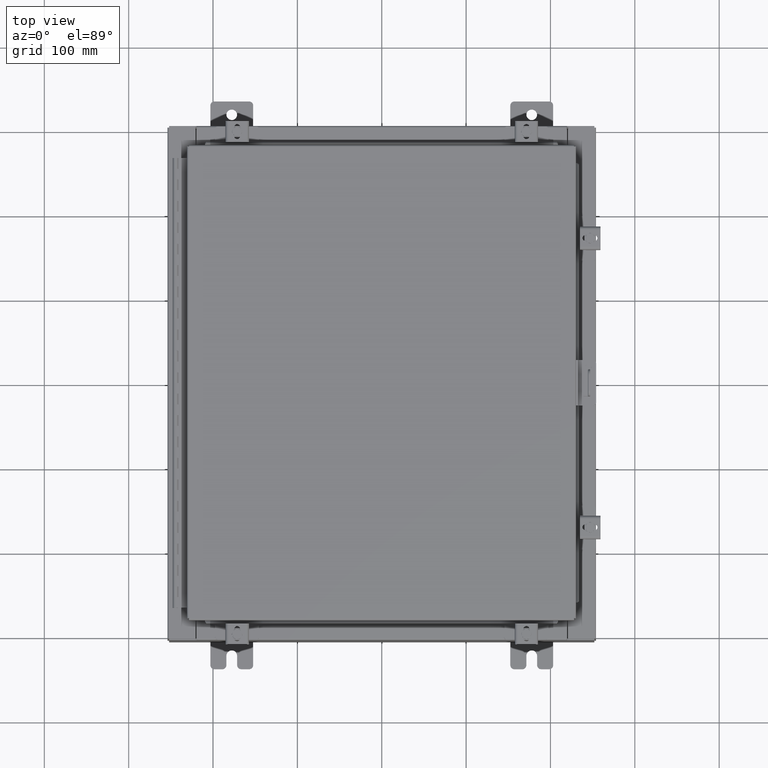
[diagram: clean part render]
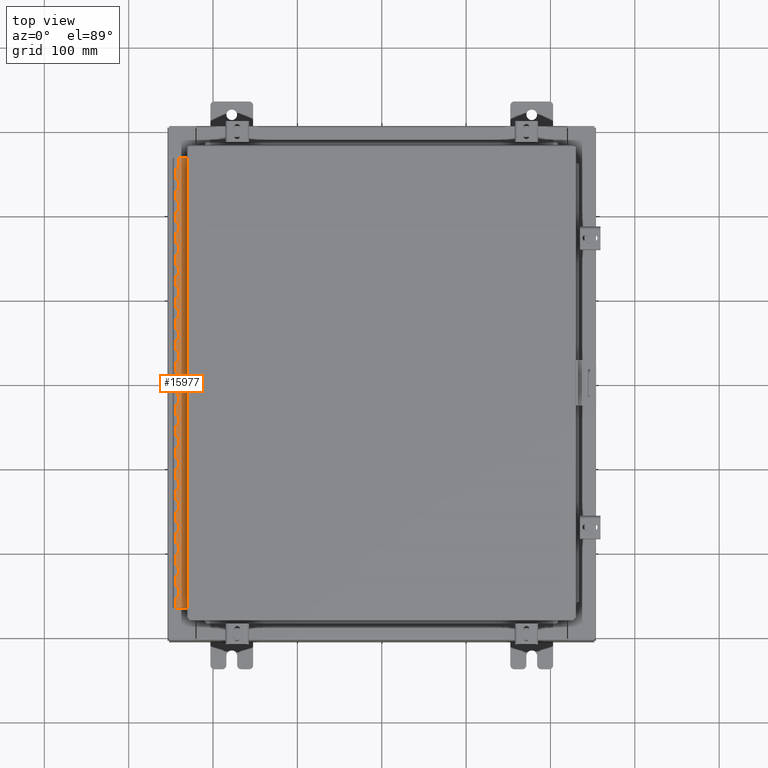
[diagram: same view with one face highlighted and labeled with its STEP entity id]
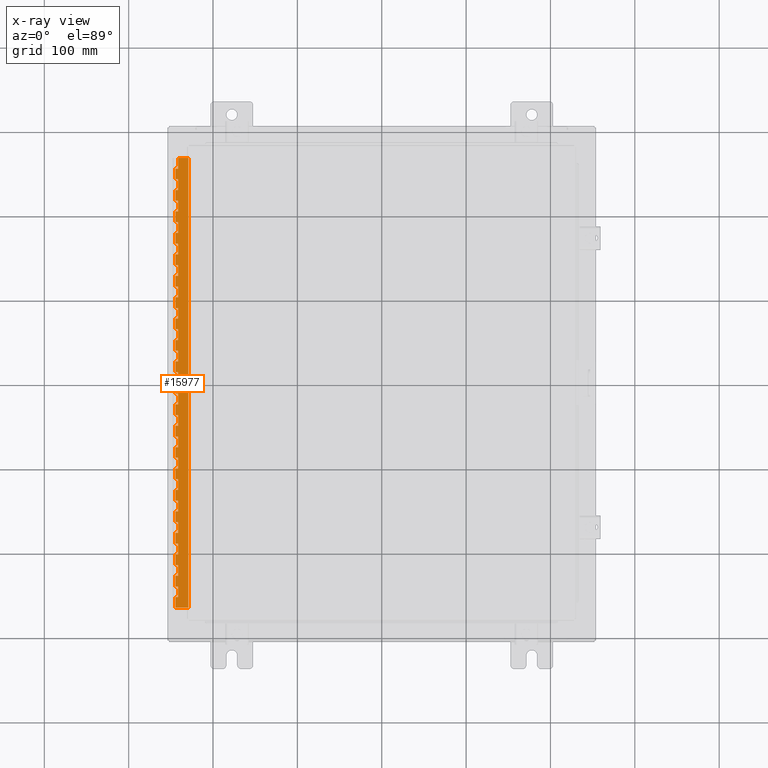
[diagram: x-ray of the same camera — body ghosted, the highlighted face saturated]
A machine part, top view. The second image highlights one B-rep face of the part: STEP entity #15977.
The next image is the same camera in x-ray: the body ghosted, the highlighted face saturated — about 0% of this face is hidden behind the body in this view.
In plain terms, the highlighted planar face has unit normal (-0, -0, 1).
Its self-contained STEP definition (entity closure, byte-faithful):
#59 = DIRECTION ( 'NONE',  ( 3.389037039080705800E-015, 1.000000000000000000, -1.234979445149240800E-029 ) ) ;
#108 = DIRECTION ( 'NONE',  ( -3.389037039080705800E-015, -1.000000000000000000, 1.234979445149240800E-029 ) ) ;
#128 = VECTOR ( 'NONE', #30440, 39.37007874015748100 ) ;
#171 = EDGE_CURVE ( 'NONE', #28133, #19284, #7158, .T. ) ;
#248 = CARTESIAN_POINT ( 'NONE',  ( -0.6869999999999976100, 0.8005000000000066500, -13.49999999999998600 ) ) ;
#260 = CARTESIAN_POINT ( 'NONE',  ( -0.6869999999999987200, 0.6755000000000029900, -7.499999999999995600 ) ) ;
#267 = EDGE_CURVE ( 'NONE', #24902, #18627, #3964, .T. ) ;
#282 = ORIENTED_EDGE ( 'NONE', *, *, #22754, .T. ) ;
#360 = VERTEX_POINT ( 'NONE', #20197 ) ;
#508 = LINE ( 'NONE', #16293, #6456 ) ;
#532 = CARTESIAN_POINT ( 'NONE',  ( -0.6869999999999965000, 0.8005000000000001000, -3.999999999999996900 ) ) ;
#549 = VECTOR ( 'NONE', #26905, 39.37007874015748100 ) ;
#576 = DIRECTION ( 'NONE',  ( -2.888710027306194400E-028, -1.407608235632711600E-029, 1.000000000000000000 ) ) ;
#586 = ORIENTED_EDGE ( 'NONE', *, *, #6159, .F. ) ;
#677 = VECTOR ( 'NONE', #17928, 39.37007874015748100 ) ;
#770 = CARTESIAN_POINT ( 'NONE',  ( -0.6869999999999987200, 0.5504999999999999900, -3.499999999999999100 ) ) ;
#871 = CARTESIAN_POINT ( 'NONE',  ( -0.6869999999999976100, 0.6755000000000062100, -21.00000000000000000 ) ) ;
#970 = ORIENTED_EDGE ( 'NONE', *, *, #171, .F. ) ;
#971 = VERTEX_POINT ( 'NONE', #18257 ) ;
#974 = ORIENTED_EDGE ( 'NONE', *, *, #6602, .F. ) ;
#1055 = LINE ( 'NONE', #19682, #13777 ) ;
#1128 = VECTOR ( 'NONE', #29818, 39.37007874015748100 ) ;
#1149 = VECTOR ( 'NONE', #15678, 39.37007874015748100 ) ;
#1310 = LINE ( 'NONE', #14015, #28365 ) ;
#1321 = EDGE_CURVE ( 'NONE', #13288, #22283, #21781, .T. ) ;
#1416 = VERTEX_POINT ( 'NONE', #32527 ) ;
#1427 = CARTESIAN_POINT ( 'NONE',  ( -0.6869999999999965000, 0.6755000000000029900, -11.49999999999998600 ) ) ;
#1451 = CARTESIAN_POINT ( 'NONE',  ( -0.6869999999999976100, 0.8005000000000023200, -2.999999999999993300 ) ) ;
#1452 = VERTEX_POINT ( 'NONE', #27618 ) ;
#1468 = VECTOR ( 'NONE', #1741, 39.37007874015748100 ) ;
#1543 = LINE ( 'NONE', #22156, #14261 ) ;
#1646 = CARTESIAN_POINT ( 'NONE',  ( -0.6869999999999987200, 0.5505000000000066500, -20.50000000000000400 ) ) ;
#1717 = CARTESIAN_POINT ( 'NONE',  ( -0.6869999999999976100, 0.8005000000000034300, -6.499999999999996400 ) ) ;
#1741 = DIRECTION ( 'NONE',  ( 2.888710027306194400E-028, 1.407608235632711600E-029, -1.000000000000000000 ) ) ;
#1757 = CARTESIAN_POINT ( 'NONE',  ( -0.6869999999999965000, -0.6245000000000068300, 0.0000000000000000000 ) ) ;
#1771 = CARTESIAN_POINT ( 'NONE',  ( -0.6869999999999976100, 0.6755000000000062100, -9.999999999999987600 ) ) ;
#1796 = VERTEX_POINT ( 'NONE', #22133 ) ;
#1800 = VERTEX_POINT ( 'NONE', #29819 ) ;
#1982 = EDGE_CURVE ( 'NONE', #360, #23605, #9858, .T. ) ;
#1983 = VECTOR ( 'NONE', #31587, 39.37007874015748100 ) ;
#2177 = CARTESIAN_POINT ( 'NONE',  ( -0.6869999999999987200, 0.5505000000000022100, -10.00000000000000000 ) ) ;
#2344 = VECTOR ( 'NONE', #11026, 39.37007874015748100 ) ;
#2361 = CARTESIAN_POINT ( 'NONE',  ( -0.6869999999999987200, 0.6755000000000029900, -18.99999999999998600 ) ) ;
#2423 = CARTESIAN_POINT ( 'NONE',  ( -0.6869999999999976100, 0.8005000000000023200, -7.499999999999995600 ) ) ;
#2468 = DIRECTION ( 'NONE',  ( 3.389037039080705800E-015, 1.000000000000000000, -1.234979445149240800E-029 ) ) ;
#2474 = CARTESIAN_POINT ( 'NONE',  ( -0.6869999999999976100, 0.6754999999999996600, -4.499999999999998200 ) ) ;
#2478 = CARTESIAN_POINT ( 'NONE',  ( -0.6869999999999976100, 0.5505000000000022100, -17.99999999999999600 ) ) ;
#2489 = VECTOR ( 'NONE', #16832, 39.37007874015748100 ) ;
#2522 = CARTESIAN_POINT ( 'NONE',  ( -0.6869999999999987200, 0.5505000000000066500, -5.499999999999997300 ) ) ;
#2667 = EDGE_CURVE ( 'NONE', #18343, #29575, #25346, .T. ) ;
#2679 = VERTEX_POINT ( 'NONE', #260 ) ;
#2810 = VECTOR ( 'NONE', #29061, 39.37007874015748100 ) ;
#2823 = VERTEX_POINT ( 'NONE', #8449 ) ;
#2838 = LINE ( 'NONE', #14298, #29095 ) ;
#2862 = CARTESIAN_POINT ( 'NONE',  ( -0.6869999999999976100, 0.6755000000000062100, -21.00000000000000000 ) ) ;
#2869 = CARTESIAN_POINT ( 'NONE',  ( -0.6869999999999976100, 0.5505000000000066500, -12.49999999999999800 ) ) ;
#2900 = LINE ( 'NONE', #28665, #9657 ) ;
#2933 = EDGE_CURVE ( 'NONE', #23991, #6891, #5443, .T. ) ;
#2962 = LINE ( 'NONE', #24045, #9716 ) ;
#2998 = VECTOR ( 'NONE', #31684, 39.37007874015748100 ) ;
#3075 = VERTEX_POINT ( 'NONE', #12361 ) ;
#3080 = VERTEX_POINT ( 'NONE', #7350 ) ;
#3102 = CARTESIAN_POINT ( 'NONE',  ( -0.6869999999999932800, 0.5505000000000022100, -14.00000000000000000 ) ) ;
#3106 = CARTESIAN_POINT ( 'NONE',  ( -0.6869999999999921700, 0.8005000000000066500, -17.49999999999998600 ) ) ;
#3373 = VERTEX_POINT ( 'NONE', #31231 ) ;
#3407 = CARTESIAN_POINT ( 'NONE',  ( -0.6869999999999976100, 0.8005000000000023200, -18.49999999999998600 ) ) ;
#3416 = EDGE_CURVE ( 'NONE', #1452, #22773, #19711, .T. ) ;
#3457 = CARTESIAN_POINT ( 'NONE',  ( -0.6869999999999976100, 0.6755000000000062100, -21.00000000000000000 ) ) ;
#3551 = CARTESIAN_POINT ( 'NONE',  ( -0.6869999999999987200, 0.5505000000000066500, -16.50000000000000000 ) ) ;
#3602 = DIRECTION ( 'NONE',  ( -2.888710027306194400E-028, -1.407608235632711600E-029, 1.000000000000000000 ) ) ;
#3705 = DIRECTION ( 'NONE',  ( 3.389037039080705800E-015, 1.000000000000000000, -1.234979445149240800E-029 ) ) ;
#3767 = LINE ( 'NONE', #23207, #16513 ) ;
#3777 = VECTOR ( 'NONE', #23903, 39.37007874015748100 ) ;
#3789 = LINE ( 'NONE', #13880, #2998 ) ;
#3927 = DIRECTION ( 'NONE',  ( -3.389037039080705800E-015, -1.000000000000000000, 1.234979445149240800E-029 ) ) ;
#3964 = LINE ( 'NONE', #24992, #23442 ) ;
#3969 = VERTEX_POINT ( 'NONE', #26316 ) ;
#4012 = EDGE_CURVE ( 'NONE', #5154, #20380, #3767, .T. ) ;
#4051 = EDGE_CURVE ( 'NONE', #3080, #12506, #15711, .T. ) ;
#4091 = ORIENTED_EDGE ( 'NONE', *, *, #23774, .F. ) ;
#4120 = VERTEX_POINT ( 'NONE', #770 ) ;
#4200 = ORIENTED_EDGE ( 'NONE', *, *, #15272, .F. ) ;
#4205 = EDGE_CURVE ( 'NONE', #3373, #1800, #26056, .T. ) ;
#4291 = DIRECTION ( 'NONE',  ( -2.888710027306194400E-028, -1.407608235632711600E-029, 1.000000000000000000 ) ) ;
#4333 = EDGE_CURVE ( 'NONE', #22283, #24902, #28032, .T. ) ;
#4342 = VERTEX_POINT ( 'NONE', #29653 ) ;
#4374 = ORIENTED_EDGE ( 'NONE', *, *, #26386, .T. ) ;
#4777 = EDGE_CURVE ( 'NONE', #28614, #24092, #29581, .T. ) ;
#4835 = VECTOR ( 'NONE', #23687, 39.37007874015748100 ) ;
#5004 = CARTESIAN_POINT ( 'NONE',  ( -0.6869999999999976100, 0.6755000000000062100, -9.499999999999998200 ) ) ;
#5038 = EDGE_CURVE ( 'NONE', #14388, #19718, #24800, .T. ) ;
#5089 = ORIENTED_EDGE ( 'NONE', *, *, #19036, .F. ) ;
#5121 = ORIENTED_EDGE ( 'NONE', *, *, #17936, .F. ) ;
#5154 = VERTEX_POINT ( 'NONE', #30293 ) ;
#5249 = VECTOR ( 'NONE', #29860, 39.37007874015748100 ) ;
#5279 = EDGE_CURVE ( 'NONE', #18817, #10953, #16828, .T. ) ;
#5329 = LINE ( 'NONE', #248, #31600 ) ;
#5347 = DIRECTION ( 'NONE',  ( -3.389037039080705800E-015, -1.000000000000000000, 1.234979445149240800E-029 ) ) ;
#5368 = CARTESIAN_POINT ( 'NONE',  ( -0.6869999999999910600, 0.8005000000000023200, -11.49999999999998600 ) ) ;
#5383 = CARTESIAN_POINT ( 'NONE',  ( -0.6869999999999953900, 0.8005000000000023200, -10.49999999999998800 ) ) ;
#5404 = ORIENTED_EDGE ( 'NONE', *, *, #2933, .F. ) ;
#5420 = CARTESIAN_POINT ( 'NONE',  ( -0.6869999999999976100, 0.6755000000000062100, -21.00000000000000000 ) ) ;
#5422 = VECTOR ( 'NONE', #17115, 39.37007874015748100 ) ;
#5443 = LINE ( 'NONE', #32047, #31710 ) ;
#5452 = CARTESIAN_POINT ( 'NONE',  ( -0.6869999999999976100, 0.5505000000000066500, -1.500000000000000900 ) ) ;
#5490 = VECTOR ( 'NONE', #12654, 39.37007874015748100 ) ;
#5612 = EDGE_CURVE ( 'NONE', #18152, #3075, #7269, .T. ) ;
#5628 = VECTOR ( 'NONE', #8579, 39.37007874015748100 ) ;
#5644 = LINE ( 'NONE', #28708, #4835 ) ;
#5681 = DIRECTION ( 'NONE',  ( 2.888710027306194400E-028, 1.407608235632711600E-029, -1.000000000000000000 ) ) ;
#5967 = EDGE_CURVE ( 'NONE', #20967, #13607, #18759, .T. ) ;
#6017 = ORIENTED_EDGE ( 'NONE', *, *, #32922, .F. ) ;
#6061 = VECTOR ( 'NONE', #108, 39.37007874015748100 ) ;
#6095 = VERTEX_POINT ( 'NONE', #7616 ) ;
#6159 = EDGE_CURVE ( 'NONE', #28614, #10464, #11620, .T. ) ;
#6207 = VECTOR ( 'NONE', #28889, 39.37007874015748100 ) ;
#6246 = ORIENTED_EDGE ( 'NONE', *, *, #27738, .T. ) ;
#6257 = VECTOR ( 'NONE', #10116, 39.37007874015748100 ) ;
#6286 = VECTOR ( 'NONE', #19802, 39.37007874015748100 ) ;
#6413 = ORIENTED_EDGE ( 'NONE', *, *, #4333, .F. ) ;
#6424 = VERTEX_POINT ( 'NONE', #14029 ) ;
#6439 = CARTESIAN_POINT ( 'NONE',  ( -0.6870000000000019400, -0.6245000000000002800, -20.99999999999999600 ) ) ;
#6456 = VECTOR ( 'NONE', #3602, 39.37007874015748100 ) ;
#6542 = ORIENTED_EDGE ( 'NONE', *, *, #13249, .T. ) ;
#6553 = CARTESIAN_POINT ( 'NONE',  ( -0.6869999999999921700, 0.6754999999999996600, -0.4999999999999973900 ) ) ;
#6571 = ORIENTED_EDGE ( 'NONE', *, *, #21753, .F. ) ;
#6583 = EDGE_CURVE ( 'NONE', #7200, #18282, #14642, .T. ) ;
#6602 = EDGE_CURVE ( 'NONE', #10138, #29741, #27370, .T. ) ;
#6632 = DIRECTION ( 'NONE',  ( -2.888710027306194400E-028, -1.407608235632711600E-029, 1.000000000000000000 ) ) ;
#6748 = CARTESIAN_POINT ( 'NONE',  ( -0.6869999999999976100, 0.5505000000000022100, -6.499999999999985800 ) ) ;
#6760 = CARTESIAN_POINT ( 'NONE',  ( -0.6870000000000019400, -0.6245000000000002800, -20.99999999999999600 ) ) ;
#6772 = DIRECTION ( 'NONE',  ( 2.888710027306194400E-028, 1.407608235632711600E-029, -1.000000000000000000 ) ) ;
#6891 = VERTEX_POINT ( 'NONE', #29188 ) ;
#6930 = CARTESIAN_POINT ( 'NONE',  ( -0.6869999999999987200, 0.5504999999999999900, -15.50000000000000000 ) ) ;
#7027 = DIRECTION ( 'NONE',  ( -2.888710027306194400E-028, -1.407608235632711600E-029, 1.000000000000000000 ) ) ;
#7057 = LINE ( 'NONE', #27938, #6257 ) ;
#7107 = DIRECTION ( 'NONE',  ( 2.888710027306194400E-028, 1.407608235632711600E-029, -1.000000000000000000 ) ) ;
#7142 = CARTESIAN_POINT ( 'NONE',  ( -0.6869999999999976100, 0.6755000000000062100, -21.00000000000000000 ) ) ;
#7158 = LINE ( 'NONE', #1757, #13124 ) ;
#7181 = ORIENTED_EDGE ( 'NONE', *, *, #9893, .F. ) ;
#7200 = VERTEX_POINT ( 'NONE', #27741 ) ;
#7269 = LINE ( 'NONE', #532, #26759 ) ;
#7295 = EDGE_CURVE ( 'NONE', #11742, #21086, #26926, .T. ) ;
#7328 = ORIENTED_EDGE ( 'NONE', *, *, #27536, .T. ) ;
#7350 = CARTESIAN_POINT ( 'NONE',  ( -0.6869999999999976100, 0.6755000000000062100, -17.49999999999998600 ) ) ;
#7393 = DIRECTION ( 'NONE',  ( 2.888710027306194400E-028, 1.407608235632711600E-029, -1.000000000000000000 ) ) ;
#7438 = VECTOR ( 'NONE', #4291, 39.37007874015748100 ) ;
#7482 = ORIENTED_EDGE ( 'NONE', *, *, #27048, .F. ) ;
#7616 = CARTESIAN_POINT ( 'NONE',  ( -0.6869999999999976100, 0.6754999999999996600, -8.500000000000000000 ) ) ;
#7620 = CARTESIAN_POINT ( 'NONE',  ( -0.6869999999999976100, 0.8005000000000023200, -14.99999999999998600 ) ) ;
#7665 = VECTOR ( 'NONE', #7929, 39.37007874015748100 ) ;
#7787 = VECTOR ( 'NONE', #7979, 39.37007874015748100 ) ;
#7862 = ORIENTED_EDGE ( 'NONE', *, *, #12829, .F. ) ;
#7929 = DIRECTION ( 'NONE',  ( -3.389037039080705800E-015, -1.000000000000000000, 1.234979445149240800E-029 ) ) ;
#7939 = CARTESIAN_POINT ( 'NONE',  ( -0.6869999999999932800, 0.5505000000000022100, -2.500000000000000000 ) ) ;
#7943 = DIRECTION ( 'NONE',  ( -3.389037039080705800E-015, -1.000000000000000000, 1.234979445149240800E-029 ) ) ;
#7952 = CARTESIAN_POINT ( 'NONE',  ( -0.6869999999999976100, 0.6755000000000029900, -3.499999999999999100 ) ) ;
#7970 = EDGE_CURVE ( 'NONE', #18282, #11739, #28085, .T. ) ;
#7979 = DIRECTION ( 'NONE',  ( -2.888710027306194400E-028, -1.407608235632711600E-029, 1.000000000000000000 ) ) ;
#8010 = DIRECTION ( 'NONE',  ( 2.888710027306194400E-028, 1.407608235632711600E-029, -1.000000000000000000 ) ) ;
#8059 = CARTESIAN_POINT ( 'NONE',  ( -0.6869999999999965000, 0.5504999999999999900, -6.999999999999987600 ) ) ;
#8080 = ORIENTED_EDGE ( 'NONE', *, *, #4777, .T. ) ;
#8104 = DIRECTION ( 'NONE',  ( -3.389037039080705800E-015, -1.000000000000000000, 1.234979445149240800E-029 ) ) ;
#8178 = EDGE_CURVE ( 'NONE', #16756, #24092, #3789, .T. ) ;
#8200 = EDGE_CURVE ( 'NONE', #28820, #10916, #29254, .T. ) ;
#8210 = ORIENTED_EDGE ( 'NONE', *, *, #8620, .T. ) ;
#8240 = ORIENTED_EDGE ( 'NONE', *, *, #8765, .F. ) ;
#8270 = DIRECTION ( 'NONE',  ( 2.888710027306194400E-028, 1.407608235632711600E-029, -1.000000000000000000 ) ) ;
#8276 = CARTESIAN_POINT ( 'NONE',  ( -0.6869999999999976100, 0.6755000000000062100, -1.999999999999998400 ) ) ;
#8327 = EDGE_CURVE ( 'NONE', #20380, #17090, #32046, .T. ) ;
#8333 = ORIENTED_EDGE ( 'NONE', *, *, #13798, .F. ) ;
#8420 = VECTOR ( 'NONE', #9662, 39.37007874015748100 ) ;
#8449 = CARTESIAN_POINT ( 'NONE',  ( -0.6869999999999976100, 0.6755000000000029900, -10.99999999999998600 ) ) ;
#8456 = ORIENTED_EDGE ( 'NONE', *, *, #267, .F. ) ;
#8461 = VECTOR ( 'NONE', #23353, 39.37007874015748100 ) ;
#8465 = CARTESIAN_POINT ( 'NONE',  ( -0.6869999999999976100, 0.8005000000000012100, -19.49999999999998600 ) ) ;
#8574 = LINE ( 'NONE', #5420, #7787 ) ;
#8579 = DIRECTION ( 'NONE',  ( -3.389037039080705800E-015, -1.000000000000000000, 1.234979445149240800E-029 ) ) ;
#8620 = EDGE_CURVE ( 'NONE', #7200, #12876, #2962, .T. ) ;
#8640 = EDGE_CURVE ( 'NONE', #14654, #29063, #8920, .T. ) ;
#8653 = CARTESIAN_POINT ( 'NONE',  ( -0.6869999999999976100, 0.6755000000000062100, -21.00000000000000000 ) ) ;
#8734 = CARTESIAN_POINT ( 'NONE',  ( -0.6869999999999987200, 0.5505000000000066500, -17.00000000000000000 ) ) ;
#8765 = EDGE_CURVE ( 'NONE', #12720, #16191, #11724, .T. ) ;
#8793 = VERTEX_POINT ( 'NONE', #23202 ) ;
#8920 = LINE ( 'NONE', #26733, #15703 ) ;
#8936 = VERTEX_POINT ( 'NONE', #22899 ) ;
#8969 = EDGE_CURVE ( 'NONE', #4342, #971, #5329, .T. ) ;
#8999 = DIRECTION ( 'NONE',  ( 3.369016658928380100E-015, 1.000000000000000000, -1.234601197718643600E-029 ) ) ;
#9106 = CARTESIAN_POINT ( 'NONE',  ( -0.6869999999999987200, 0.5505000000000066500, -17.50000000000000000 ) ) ;
#9234 = CARTESIAN_POINT ( 'NONE',  ( -0.6869999999999976100, 0.6755000000000029900, -10.49999999999998800 ) ) ;
#9287 = VECTOR ( 'NONE', #28529, 39.37007874015748100 ) ;
#9327 = VECTOR ( 'NONE', #8270, 39.37007874015748100 ) ;
#9339 = VERTEX_POINT ( 'NONE', #24889 ) ;
#9481 = ORIENTED_EDGE ( 'NONE', *, *, #23880, .F. ) ;
#9538 = VERTEX_POINT ( 'NONE', #23200 ) ;
#9558 = LINE ( 'NONE', #11276, #2810 ) ;
#9657 = VECTOR ( 'NONE', #15983, 39.37007874015748100 ) ;
#9662 = DIRECTION ( 'NONE',  ( -3.389037039080705800E-015, -1.000000000000000000, 1.234979445149240800E-029 ) ) ;
#9716 = VECTOR ( 'NONE', #18915, 39.37007874015748100 ) ;
#9756 = CARTESIAN_POINT ( 'NONE',  ( -0.6869999999999921700, 0.5504999999999999900, -7.999999999999986700 ) ) ;
#9858 = LINE ( 'NONE', #22783, #22590 ) ;
#9893 = EDGE_CURVE ( 'NONE', #18279, #18817, #14404, .T. ) ;
#10116 = DIRECTION ( 'NONE',  ( -2.888710027306194400E-028, -1.407608235632711600E-029, 1.000000000000000000 ) ) ;
#10122 = CARTESIAN_POINT ( 'NONE',  ( -0.6869999999999965000, 0.5505000000000022100, -18.50000000000000000 ) ) ;
#10138 = VERTEX_POINT ( 'NONE', #16467 ) ;
#10372 = EDGE_CURVE ( 'NONE', #1452, #5154, #14380, .T. ) ;
#10387 = VECTOR ( 'NONE', #7393, 39.37007874015748100 ) ;
#10464 = VERTEX_POINT ( 'NONE', #32900 ) ;
#10630 = VERTEX_POINT ( 'NONE', #3102 ) ;
#10740 = DIRECTION ( 'NONE',  ( 3.389037039080705800E-015, 1.000000000000000000, -1.234979445149240800E-029 ) ) ;
#10741 = VECTOR ( 'NONE', #27913, 39.37007874015748100 ) ;
#10753 = ORIENTED_EDGE ( 'NONE', *, *, #10372, .F. ) ;
#10916 = VERTEX_POINT ( 'NONE', #32326 ) ;
#10953 = VERTEX_POINT ( 'NONE', #14635 ) ;
#11026 = DIRECTION ( 'NONE',  ( 3.389037039080705800E-015, 1.000000000000000000, -1.234979445149240800E-029 ) ) ;
#11040 = DIRECTION ( 'NONE',  ( -3.389037039080705800E-015, -1.000000000000000000, 1.234979445149240800E-029 ) ) ;
#11126 = ORIENTED_EDGE ( 'NONE', *, *, #8327, .F. ) ;
#11201 = VECTOR ( 'NONE', #25147, 39.37007874015748100 ) ;
#11243 = DIRECTION ( 'NONE',  ( -2.888710027306194400E-028, -1.407608235632711600E-029, 1.000000000000000000 ) ) ;
#11267 = CARTESIAN_POINT ( 'NONE',  ( -0.6869999999999987200, 0.5505000000000066500, -9.499999999999998200 ) ) ;
#11276 = CARTESIAN_POINT ( 'NONE',  ( -0.6869999999999976100, 0.8005000000000066500, -12.49999999999998600 ) ) ;
#11284 = CARTESIAN_POINT ( 'NONE',  ( -0.6869999999999965000, 0.8005000000000012100, -15.99999999999998800 ) ) ;
#11286 = CARTESIAN_POINT ( 'NONE',  ( -0.6869999999999976100, 0.8005000000000066500, -8.999999999999996400 ) ) ;
#11333 = DIRECTION ( 'NONE',  ( 3.389037039080705800E-015, 1.000000000000000000, -1.234979445149240800E-029 ) ) ;
#11354 = CARTESIAN_POINT ( 'NONE',  ( -0.6869999999999976100, 0.6755000000000062100, -21.00000000000000000 ) ) ;
#11366 = VECTOR ( 'NONE', #11892, 39.37007874015748100 ) ;
#11379 = ORIENTED_EDGE ( 'NONE', *, *, #24463, .F. ) ;
#11391 = VERTEX_POINT ( 'NONE', #11538 ) ;
#11459 = ORIENTED_EDGE ( 'NONE', *, *, #20223, .F. ) ;
#11462 = LINE ( 'NONE', #2423, #5490 ) ;
#11502 = DIRECTION ( 'NONE',  ( 2.888710027306194400E-028, 1.407608235632711600E-029, -1.000000000000000000 ) ) ;
#11538 = CARTESIAN_POINT ( 'NONE',  ( -0.6869999999999998300, 0.07550000000000224600, -21.00000000000000000 ) ) ;
#11602 = LINE ( 'NONE', #23809, #5628 ) ;
#11620 = LINE ( 'NONE', #5383, #24314 ) ;
#11701 = VERTEX_POINT ( 'NONE', #31303 ) ;
#11724 = LINE ( 'NONE', #29711, #31206 ) ;
#11739 = VERTEX_POINT ( 'NONE', #23833 ) ;
#11742 = VERTEX_POINT ( 'NONE', #31413 ) ;
#11763 = ORIENTED_EDGE ( 'NONE', *, *, #13242, .F. ) ;
#11841 = ORIENTED_EDGE ( 'NONE', *, *, #29527, .F. ) ;
#11892 = DIRECTION ( 'NONE',  ( 3.369016658928380100E-015, 1.000000000000000000, -1.234601197718643400E-029 ) ) ;
#11895 = DIRECTION ( 'NONE',  ( 3.389037039080705800E-015, 1.000000000000000000, -1.234979445149240800E-029 ) ) ;
#12029 = CARTESIAN_POINT ( 'NONE',  ( -0.6869999999999976100, 0.8005000000000066500, -1.500000000000000900 ) ) ;
#12099 = ORIENTED_EDGE ( 'NONE', *, *, #20054, .T. ) ;
#12129 = VECTOR ( 'NONE', #18820, 39.37007874015748100 ) ;
#12140 = ORIENTED_EDGE ( 'NONE', *, *, #31733, .F. ) ;
#12348 = EDGE_CURVE ( 'NONE', #29063, #12876, #22617, .T. ) ;
#12353 = CARTESIAN_POINT ( 'NONE',  ( -0.6869999999999987200, 0.5504999999999999900, -11.00000000000000000 ) ) ;
#12361 = CARTESIAN_POINT ( 'NONE',  ( -0.6869999999999976100, 0.6755000000000007700, -3.999999999999996900 ) ) ;
#12415 = LINE ( 'NONE', #23573, #26740 ) ;
#12480 = CARTESIAN_POINT ( 'NONE',  ( -0.6869999999999976100, 0.8005000000000066500, -9.499999999999998200 ) ) ;
#12506 = VERTEX_POINT ( 'NONE', #9106 ) ;
#12518 = VERTEX_POINT ( 'NONE', #26907 ) ;
#12526 = VERTEX_POINT ( 'NONE', #6553 ) ;
#12557 = ORIENTED_EDGE ( 'NONE', *, *, #22993, .T. ) ;
#12654 = DIRECTION ( 'NONE',  ( -3.389037039080705800E-015, -1.000000000000000000, 1.234979445149240800E-029 ) ) ;
#12720 = VERTEX_POINT ( 'NONE', #30248 ) ;
#12754 = ORIENTED_EDGE ( 'NONE', *, *, #15260, .F. ) ;
#12829 = EDGE_CURVE ( 'NONE', #20997, #23991, #28574, .T. ) ;
#12876 = VERTEX_POINT ( 'NONE', #31007 ) ;
#13124 = VECTOR ( 'NONE', #16989, 39.37007874015748100 ) ;
#13242 = EDGE_CURVE ( 'NONE', #30157, #16756, #28521, .T. ) ;
#13249 = EDGE_CURVE ( 'NONE', #23092, #8793, #20936, .T. ) ;
#13288 = VERTEX_POINT ( 'NONE', #32437 ) ;
#13558 = VECTOR ( 'NONE', #29129, 39.37007874015748100 ) ;
#13607 = VERTEX_POINT ( 'NONE', #28515 ) ;
#13641 = LINE ( 'NONE', #2522, #128 ) ;
#13673 = ORIENTED_EDGE ( 'NONE', *, *, #8969, .F. ) ;
#13704 = VECTOR ( 'NONE', #27085, 39.37007874015748100 ) ;
#13723 = ORIENTED_EDGE ( 'NONE', *, *, #32610, .F. ) ;
#13770 = ORIENTED_EDGE ( 'NONE', *, *, #7970, .F. ) ;
#13777 = VECTOR ( 'NONE', #7027, 39.37007874015748100 ) ;
#13785 = VERTEX_POINT ( 'NONE', #21585 ) ;
#13786 = CARTESIAN_POINT ( 'NONE',  ( -0.6869999999999976100, 0.8005000000000066500, -20.50000000000000700 ) ) ;
#13798 = EDGE_CURVE ( 'NONE', #3969, #11742, #19297, .T. ) ;
#13802 = EDGE_CURVE ( 'NONE', #6424, #25898, #32852, .T. ) ;
#13880 = CARTESIAN_POINT ( 'NONE',  ( -0.6869999999999976100, 0.8005000000000055400, -9.999999999999987600 ) ) ;
#14015 = CARTESIAN_POINT ( 'NONE',  ( -0.6869999999999932800, 0.5505000000000066500, -13.50000000000000000 ) ) ;
#14029 = CARTESIAN_POINT ( 'NONE',  ( -0.6869999999999976100, 0.6755000000000062100, -16.49999999999998600 ) ) ;
#14038 = CARTESIAN_POINT ( 'NONE',  ( -0.6869999999999965000, 0.8005000000000066500, -16.49999999999998600 ) ) ;
#14064 = LINE ( 'NONE', #1451, #549 ) ;
#14086 = EDGE_CURVE ( 'NONE', #11701, #1796, #24073, .T. ) ;
#14157 = VECTOR ( 'NONE', #7107, 39.37007874015748100 ) ;
#14199 = ORIENTED_EDGE ( 'NONE', *, *, #25574, .F. ) ;
#14261 = VECTOR ( 'NONE', #24721, 39.37007874015748100 ) ;
#14290 = EDGE_CURVE ( 'NONE', #4342, #6891, #31693, .T. ) ;
#14298 = CARTESIAN_POINT ( 'NONE',  ( -0.6869999999999976100, 0.6755000000000062100, -21.00000000000000000 ) ) ;
#14334 = CARTESIAN_POINT ( 'NONE',  ( -0.6869999999999987200, 0.5505000000000022100, -10.50000000000000000 ) ) ;
#14380 = LINE ( 'NONE', #27455, #8420 ) ;
#14388 = VERTEX_POINT ( 'NONE', #15338 ) ;
#14404 = LINE ( 'NONE', #5368, #7665 ) ;
#14413 = CARTESIAN_POINT ( 'NONE',  ( -0.6869999999999987200, 0.5504999999999999900, -4.499999999999998200 ) ) ;
#14461 = ORIENTED_EDGE ( 'NONE', *, *, #4205, .F. ) ;
#14574 = EDGE_CURVE ( 'NONE', #12526, #19284, #24489, .T. ) ;
#14635 = CARTESIAN_POINT ( 'NONE',  ( -0.6869999999999976100, 0.5504999999999999900, -11.99999999999999800 ) ) ;
#14642 = LINE ( 'NONE', #12029, #1128 ) ;
#14654 = VERTEX_POINT ( 'NONE', #26569 ) ;
#14663 = LINE ( 'NONE', #30924, #1149 ) ;
#14802 = DIRECTION ( 'NONE',  ( -2.888710027306194400E-028, -1.407608235632711600E-029, 1.000000000000000000 ) ) ;
#14862 = FACE_OUTER_BOUND ( 'NONE', #26325, .T. ) ;
#14935 = VECTOR ( 'NONE', #24100, 39.37007874015748100 ) ;
#15062 = DIRECTION ( 'NONE',  ( 2.888710027306194400E-028, 1.407608235632711600E-029, -1.000000000000000000 ) ) ;
#15129 = EDGE_CURVE ( 'NONE', #4120, #18152, #16904, .T. ) ;
#15152 = LINE ( 'NONE', #11354, #13558 ) ;
#15260 = EDGE_CURVE ( 'NONE', #32339, #10916, #32431, .T. ) ;
#15272 = EDGE_CURVE ( 'NONE', #27388, #13607, #18864, .T. ) ;
#15335 = CARTESIAN_POINT ( 'NONE',  ( -0.6869999999999976100, 0.8005000000000023200, -15.49999999999998800 ) ) ;
#15338 = CARTESIAN_POINT ( 'NONE',  ( -0.6869999999999987200, 0.5504999999999999900, -15.50000000000000000 ) ) ;
#15483 = CARTESIAN_POINT ( 'NONE',  ( -0.6869999999999987200, 0.5505000000000066500, -20.50000000000000400 ) ) ;
#15668 = DIRECTION ( 'NONE',  ( 2.888710027306194400E-028, 1.407608235632711600E-029, -1.000000000000000000 ) ) ;
#15678 = DIRECTION ( 'NONE',  ( -3.389037039080705800E-015, -1.000000000000000000, 1.234979445149240800E-029 ) ) ;
#15703 = VECTOR ( 'NONE', #11502, 39.37007874015748100 ) ;
#15711 = LINE ( 'NONE', #3106, #22457 ) ;
#15806 = CARTESIAN_POINT ( 'NONE',  ( -0.6869999999999976100, 0.6755000000000062100, -21.00000000000000000 ) ) ;
#15833 = VECTOR ( 'NONE', #16951, 39.37007874015748100 ) ;
#15891 = DIRECTION ( 'NONE',  ( 3.389037039080705800E-015, 1.000000000000000000, -1.234979445149240800E-029 ) ) ;
#15922 = DIRECTION ( 'NONE',  ( 3.389037039080705800E-015, 1.000000000000000000, -1.234979445149240800E-029 ) ) ;
#15977 = ADVANCED_FACE ( 'NONE', ( #14862 ), #31820, .T. ) ;
#15983 = DIRECTION ( 'NONE',  ( 3.389037039080705800E-015, 1.000000000000000000, -1.234979445149240800E-029 ) ) ;
#15986 = CARTESIAN_POINT ( 'NONE',  ( -0.6869999999999976100, 0.6755000000000062100, -21.00000000000000000 ) ) ;
#16006 = EDGE_CURVE ( 'NONE', #21086, #8793, #14064, .T. ) ;
#16009 = LINE ( 'NONE', #21820, #2489 ) ;
#16083 = DIRECTION ( 'NONE',  ( -3.389037039080705800E-015, -1.000000000000000000, 1.234979445149240800E-029 ) ) ;
#16115 = VECTOR ( 'NONE', #15062, 39.37007874015748100 ) ;
#16191 = VERTEX_POINT ( 'NONE', #9756 ) ;
#16293 = CARTESIAN_POINT ( 'NONE',  ( -0.6869999999999976100, 0.6755000000000062100, -21.00000000000000000 ) ) ;
#16330 = LINE ( 'NONE', #15986, #23074 ) ;
#16382 = EDGE_CURVE ( 'NONE', #10630, #22773, #2900, .T. ) ;
#16407 = ORIENTED_EDGE ( 'NONE', *, *, #15129, .F. ) ;
#16438 = CARTESIAN_POINT ( 'NONE',  ( -0.6869999999999976100, 0.6755000000000062100, -21.00000000000000000 ) ) ;
#16450 = ORIENTED_EDGE ( 'NONE', *, *, #23264, .F. ) ;
#16467 = CARTESIAN_POINT ( 'NONE',  ( -0.6869999999999976100, 0.6755000000000062100, -5.499999999999997300 ) ) ;
#16513 = VECTOR ( 'NONE', #15668, 39.37007874015748100 ) ;
#16655 = CARTESIAN_POINT ( 'NONE',  ( -0.6869999999999976100, 0.5505000000000066500, -1.500000000000000900 ) ) ;
#16756 = VERTEX_POINT ( 'NONE', #2177 ) ;
#16828 = LINE ( 'NONE', #31051, #8461 ) ;
#16832 = DIRECTION ( 'NONE',  ( 2.888710027306194400E-028, 1.407608235632711600E-029, -1.000000000000000000 ) ) ;
#16904 = LINE ( 'NONE', #23495, #9327 ) ;
#16940 = VECTOR ( 'NONE', #18634, 39.37007874015748100 ) ;
#16951 = DIRECTION ( 'NONE',  ( -3.389037039080705800E-015, -1.000000000000000000, 1.234979445149240800E-029 ) ) ;
#16989 = DIRECTION ( 'NONE',  ( 3.369016658928380100E-015, 1.000000000000000000, -1.234601197718643400E-029 ) ) ;
#17090 = VERTEX_POINT ( 'NONE', #29407 ) ;
#17099 = VECTOR ( 'NONE', #5681, 39.37007874015748100 ) ;
#17115 = DIRECTION ( 'NONE',  ( -2.888710027306194400E-028, -1.407608235632711600E-029, 1.000000000000000000 ) ) ;
#17164 = VERTEX_POINT ( 'NONE', #29740 ) ;
#17224 = ORIENTED_EDGE ( 'NONE', *, *, #27345, .F. ) ;
#17304 = EDGE_CURVE ( 'NONE', #25898, #26586, #24722, .T. ) ;
#17327 = VECTOR ( 'NONE', #23625, 39.37007874015748100 ) ;
#17488 = EDGE_CURVE ( 'NONE', #17164, #30870, #25112, .T. ) ;
#17497 = EDGE_CURVE ( 'NONE', #23624, #29341, #11602, .T. ) ;
#17785 = CARTESIAN_POINT ( 'NONE',  ( -0.6869999999999976100, 0.8005000000000001000, -8.500000000000000000 ) ) ;
#17928 = DIRECTION ( 'NONE',  ( 2.888710027306194400E-028, 1.407608235632711600E-029, -1.000000000000000000 ) ) ;
#17936 = EDGE_CURVE ( 'NONE', #6095, #12518, #31057, .T. ) ;
#17978 = LINE ( 'NONE', #20539, #30734 ) ;
#18027 = AXIS2_PLACEMENT_3D ( 'NONE', #6439, #24225, #8999 ) ;
#18087 = DIRECTION ( 'NONE',  ( 2.888710027306194400E-028, 1.407608235632711600E-029, -1.000000000000000000 ) ) ;
#18110 = EDGE_CURVE ( 'NONE', #9538, #1416, #20289, .T. ) ;
#18152 = VERTEX_POINT ( 'NONE', #28893 ) ;
#18257 = CARTESIAN_POINT ( 'NONE',  ( -0.6869999999999932800, 0.5505000000000066500, -13.50000000000000000 ) ) ;
#18279 = VERTEX_POINT ( 'NONE', #1427 ) ;
#18282 = VERTEX_POINT ( 'NONE', #16655 ) ;
#18334 = VECTOR ( 'NONE', #11040, 39.37007874015748100 ) ;
#18343 = VERTEX_POINT ( 'NONE', #1646 ) ;
#18354 = LINE ( 'NONE', #11284, #31912 ) ;
#18414 = EDGE_CURVE ( 'NONE', #12526, #14654, #31832, .T. ) ;
#18508 = VECTOR ( 'NONE', #3927, 39.37007874015748100 ) ;
#18511 = CARTESIAN_POINT ( 'NONE',  ( -0.6869999999999998300, 0.07550000000000224600, -21.00000000000000000 ) ) ;
#18564 = VECTOR ( 'NONE', #30724, 39.37007874015748100 ) ;
#18627 = VERTEX_POINT ( 'NONE', #25649 ) ;
#18634 = DIRECTION ( 'NONE',  ( -2.888710027306194400E-028, -1.407608235632711600E-029, 1.000000000000000000 ) ) ;
#18759 = LINE ( 'NONE', #22172, #5249 ) ;
#18771 = LINE ( 'NONE', #15335, #6061 ) ;
#18817 = VERTEX_POINT ( 'NONE', #31533 ) ;
#18820 = DIRECTION ( 'NONE',  ( 3.389037039080705800E-015, 1.000000000000000000, -1.234979445149240800E-029 ) ) ;
#18851 = ORIENTED_EDGE ( 'NONE', *, *, #18110, .F. ) ;
#18864 = LINE ( 'NONE', #18928, #31629 ) ;
#18903 = ORIENTED_EDGE ( 'NONE', *, *, #19821, .T. ) ;
#18915 = DIRECTION ( 'NONE',  ( -2.888710027306194400E-028, -1.407608235632711600E-029, 1.000000000000000000 ) ) ;
#18928 = CARTESIAN_POINT ( 'NONE',  ( -0.6869999999999976100, 0.8005000000000055400, -17.99999999999998600 ) ) ;
#18930 = VECTOR ( 'NONE', #14802, 39.37007874015748100 ) ;
#19036 = EDGE_CURVE ( 'NONE', #11739, #21151, #1543, .T. ) ;
#19049 = ORIENTED_EDGE ( 'NONE', *, *, #5279, .F. ) ;
#19073 = ORIENTED_EDGE ( 'NONE', *, *, #24071, .F. ) ;
#19255 = ORIENTED_EDGE ( 'NONE', *, *, #21364, .F. ) ;
#19274 = CARTESIAN_POINT ( 'NONE',  ( -0.6869999999999987200, 0.5505000000000066500, -5.499999999999997300 ) ) ;
#19284 = VERTEX_POINT ( 'NONE', #28384 ) ;
#19297 = LINE ( 'NONE', #24153, #32068 ) ;
#19501 = CARTESIAN_POINT ( 'NONE',  ( -0.6869999999999987200, 0.5505000000000066500, -9.499999999999998200 ) ) ;
#19682 = CARTESIAN_POINT ( 'NONE',  ( -0.6869999999999976100, 0.6755000000000062100, -21.00000000000000000 ) ) ;
#19711 = LINE ( 'NONE', #8653, #6207 ) ;
#19718 = VERTEX_POINT ( 'NONE', #25050 ) ;
#19802 = DIRECTION ( 'NONE',  ( -3.389037039080705800E-015, -1.000000000000000000, 1.234979445149240800E-029 ) ) ;
#19821 = EDGE_CURVE ( 'NONE', #29369, #1416, #7057, .T. ) ;
#19827 = ORIENTED_EDGE ( 'NONE', *, *, #4051, .F. ) ;
#19916 = ORIENTED_EDGE ( 'NONE', *, *, #14086, .T. ) ;
#19926 = VECTOR ( 'NONE', #576, 39.37007874015748100 ) ;
#20023 = ORIENTED_EDGE ( 'NONE', *, *, #5612, .F. ) ;
#20054 = EDGE_CURVE ( 'NONE', #2679, #18627, #30823, .T. ) ;
#20057 = CARTESIAN_POINT ( 'NONE',  ( -0.6869999999999976100, 0.8005000000000001000, -11.99999999999998600 ) ) ;
#20099 = CARTESIAN_POINT ( 'NONE',  ( -0.6869999999999987200, 0.5504999999999999900, -14.99999999999999800 ) ) ;
#20137 = CARTESIAN_POINT ( 'NONE',  ( -0.6869999999999921700, 0.8005000000000066500, -5.999999999999999100 ) ) ;
#20197 = CARTESIAN_POINT ( 'NONE',  ( -0.6869999999999965000, 0.5504999999999999900, -19.00000000000000000 ) ) ;
#20223 = EDGE_CURVE ( 'NONE', #10464, #22137, #26824, .T. ) ;
#20289 = LINE ( 'NONE', #31234, #26279 ) ;
#20298 = CARTESIAN_POINT ( 'NONE',  ( -0.6869999999999976100, 0.5505000000000066500, -12.49999999999999800 ) ) ;
#20325 = ORIENTED_EDGE ( 'NONE', *, *, #28951, .F. ) ;
#20327 = CARTESIAN_POINT ( 'NONE',  ( -0.6869999999999976100, 0.5505000000000022100, -6.499999999999985800 ) ) ;
#20380 = VERTEX_POINT ( 'NONE', #20099 ) ;
#20539 = CARTESIAN_POINT ( 'NONE',  ( -0.6869999999999987200, 0.5504999999999999900, -4.499999999999998200 ) ) ;
#20547 = ORIENTED_EDGE ( 'NONE', *, *, #17497, .F. ) ;
#20630 = DIRECTION ( 'NONE',  ( -2.888710027306194400E-028, -1.407608235632711600E-029, 1.000000000000000000 ) ) ;
#20833 = ORIENTED_EDGE ( 'NONE', *, *, #1982, .F. ) ;
#20889 = CARTESIAN_POINT ( 'NONE',  ( -0.6869999999999921700, 0.5504999999999999900, -19.50000000000000000 ) ) ;
#20936 = LINE ( 'NONE', #22061, #7438 ) ;
#20967 = VERTEX_POINT ( 'NONE', #22734 ) ;
#20984 = EDGE_CURVE ( 'NONE', #29741, #31637, #13641, .T. ) ;
#20997 = VERTEX_POINT ( 'NONE', #20298 ) ;
#20998 = ORIENTED_EDGE ( 'NONE', *, *, #3416, .T. ) ;
#21053 = CARTESIAN_POINT ( 'NONE',  ( -0.6869999999999976100, 0.6755000000000062100, -21.00000000000000000 ) ) ;
#21086 = VERTEX_POINT ( 'NONE', #23279 ) ;
#21151 = VERTEX_POINT ( 'NONE', #8276 ) ;
#21219 = ORIENTED_EDGE ( 'NONE', *, *, #5038, .F. ) ;
#21230 = EDGE_CURVE ( 'NONE', #3080, #9339, #508, .T. ) ;
#21290 = VECTOR ( 'NONE', #20630, 39.37007874015748100 ) ;
#21293 = VECTOR ( 'NONE', #8010, 39.37007874015748100 ) ;
#21364 = EDGE_CURVE ( 'NONE', #12518, #32339, #16009, .T. ) ;
#21407 = VERTEX_POINT ( 'NONE', #32295 ) ;
#21439 = CARTESIAN_POINT ( 'NONE',  ( -0.6869999999999921700, 0.5504999999999999900, -19.50000000000000000 ) ) ;
#21585 = CARTESIAN_POINT ( 'NONE',  ( -0.6869999999999976100, 0.6754999999999996600, -15.99999999999998800 ) ) ;
#21714 = ORIENTED_EDGE ( 'NONE', *, *, #16006, .F. ) ;
#21753 = EDGE_CURVE ( 'NONE', #26586, #9339, #12415, .T. ) ;
#21756 = VERTEX_POINT ( 'NONE', #23468 ) ;
#21768 = EDGE_CURVE ( 'NONE', #22137, #2823, #5644, .T. ) ;
#21781 = LINE ( 'NONE', #1717, #15833 ) ;
#21783 = VECTOR ( 'NONE', #18087, 39.37007874015748100 ) ;
#21820 = CARTESIAN_POINT ( 'NONE',  ( -0.6869999999999987200, 0.5504999999999999900, -8.499999999999985800 ) ) ;
#21901 = DIRECTION ( 'NONE',  ( 3.389037039080705800E-015, 1.000000000000000000, -1.234979445149240800E-029 ) ) ;
#21979 = ORIENTED_EDGE ( 'NONE', *, *, #4012, .F. ) ;
#22061 = CARTESIAN_POINT ( 'NONE',  ( -0.6869999999999976100, 0.6755000000000062100, -21.00000000000000000 ) ) ;
#22133 = CARTESIAN_POINT ( 'NONE',  ( -0.6869999999999921700, 0.6755000000000007700, -11.99999999999998600 ) ) ;
#22137 = VERTEX_POINT ( 'NONE', #12353 ) ;
#22148 = DIRECTION ( 'NONE',  ( 2.888710027306194400E-028, 1.407608235632711600E-029, -1.000000000000000000 ) ) ;
#22156 = CARTESIAN_POINT ( 'NONE',  ( -0.6869999999999976100, 0.8005000000000055400, -1.999999999999998400 ) ) ;
#22172 = CARTESIAN_POINT ( 'NONE',  ( -0.6869999999999976100, 0.6755000000000062100, -21.00000000000000000 ) ) ;
#22283 = VERTEX_POINT ( 'NONE', #20327 ) ;
#22398 = VECTOR ( 'NONE', #22148, 39.37007874015748100 ) ;
#22457 = VECTOR ( 'NONE', #8104, 39.37007874015748100 ) ;
#22509 = LINE ( 'NONE', #32467, #14157 ) ;
#22540 = LINE ( 'NONE', #12480, #28527 ) ;
#22550 = EDGE_CURVE ( 'NONE', #10138, #1800, #16330, .T. ) ;
#22590 = VECTOR ( 'NONE', #2468, 39.37007874015748100 ) ;
#22617 = LINE ( 'NONE', #28811, #2344 ) ;
#22634 = VECTOR ( 'NONE', #11895, 39.37007874015748100 ) ;
#22684 = DIRECTION ( 'NONE',  ( -3.389037039080705800E-015, -1.000000000000000000, 1.234979445149240800E-029 ) ) ;
#22734 = CARTESIAN_POINT ( 'NONE',  ( -0.6869999999999921700, 0.6755000000000029900, -18.49999999999998600 ) ) ;
#22754 = EDGE_CURVE ( 'NONE', #13288, #21756, #2838, .T. ) ;
#22773 = VERTEX_POINT ( 'NONE', #27075 ) ;
#22783 = CARTESIAN_POINT ( 'NONE',  ( -0.6869999999999976100, 0.8005000000000023200, -18.99999999999998600 ) ) ;
#22835 = CARTESIAN_POINT ( 'NONE',  ( -0.6869999999999976100, 0.6755000000000062100, -21.00000000000000000 ) ) ;
#22899 = CARTESIAN_POINT ( 'NONE',  ( -0.6869999999999976100, 0.6755000000000029900, -15.49999999999998800 ) ) ;
#22993 = EDGE_CURVE ( 'NONE', #8936, #17090, #25109, .T. ) ;
#23074 = VECTOR ( 'NONE', #31220, 39.37007874015748100 ) ;
#23092 = VERTEX_POINT ( 'NONE', #7952 ) ;
#23094 = DIRECTION ( 'NONE',  ( 2.888710027306194400E-028, 1.407608235632711600E-029, -1.000000000000000000 ) ) ;
#23200 = CARTESIAN_POINT ( 'NONE',  ( -0.6869999999999921700, 0.5504999999999999900, -20.00000000000000000 ) ) ;
#23202 = CARTESIAN_POINT ( 'NONE',  ( -0.6869999999999976100, 0.6755000000000029900, -2.999999999999997300 ) ) ;
#23207 = CARTESIAN_POINT ( 'NONE',  ( -0.6869999999999987200, 0.5505000000000022100, -14.49999999999999800 ) ) ;
#23264 = EDGE_CURVE ( 'NONE', #11701, #20997, #9558, .T. ) ;
#23279 = CARTESIAN_POINT ( 'NONE',  ( -0.6869999999999987200, 0.5505000000000011000, -2.999999999999997300 ) ) ;
#23309 = ORIENTED_EDGE ( 'NONE', *, *, #17488, .F. ) ;
#23353 = DIRECTION ( 'NONE',  ( 2.888710027306194400E-028, 1.407608235632711600E-029, -1.000000000000000000 ) ) ;
#23413 = CARTESIAN_POINT ( 'NONE',  ( -0.6869999999999987200, 0.5505000000000066500, -21.00000000000000000 ) ) ;
#23435 = LINE ( 'NONE', #29674, #22634 ) ;
#23442 = VECTOR ( 'NONE', #27538, 39.37007874015748100 ) ;
#23468 = CARTESIAN_POINT ( 'NONE',  ( -0.6869999999999976100, 0.6755000000000062100, -5.999999999999999100 ) ) ;
#23491 = VECTOR ( 'NONE', #25408, 39.37007874015748100 ) ;
#23495 = CARTESIAN_POINT ( 'NONE',  ( -0.6869999999999987200, 0.5504999999999999900, -3.499999999999999100 ) ) ;
#23573 = CARTESIAN_POINT ( 'NONE',  ( -0.6869999999999921700, 0.8005000000000066500, -16.99999999999998600 ) ) ;
#23605 = VERTEX_POINT ( 'NONE', #2361 ) ;
#23624 = VERTEX_POINT ( 'NONE', #2474 ) ;
#23625 = DIRECTION ( 'NONE',  ( -2.888710027306194400E-028, -1.407608235632711600E-029, 1.000000000000000000 ) ) ;
#23687 = DIRECTION ( 'NONE',  ( 3.389037039080705800E-015, 1.000000000000000000, -1.234979445149240800E-029 ) ) ;
#23774 = EDGE_CURVE ( 'NONE', #30870, #9538, #29833, .T. ) ;
#23809 = CARTESIAN_POINT ( 'NONE',  ( -0.6869999999999965000, 0.8005000000000001000, -4.499999999999993800 ) ) ;
#23833 = CARTESIAN_POINT ( 'NONE',  ( -0.6869999999999932800, 0.5505000000000044300, -1.999999999999998400 ) ) ;
#23880 = EDGE_CURVE ( 'NONE', #29369, #18343, #27427, .T. ) ;
#23903 = DIRECTION ( 'NONE',  ( -2.888710027306194400E-028, -1.407608235632711600E-029, 1.000000000000000000 ) ) ;
#23917 = LINE ( 'NONE', #20137, #11201 ) ;
#23991 = VERTEX_POINT ( 'NONE', #32025 ) ;
#24039 = VECTOR ( 'NONE', #11243, 39.37007874015748100 ) ;
#24045 = CARTESIAN_POINT ( 'NONE',  ( -0.6869999999999976100, 0.6755000000000062100, -21.00000000000000000 ) ) ;
#24071 = EDGE_CURVE ( 'NONE', #16191, #21407, #23435, .T. ) ;
#24073 = LINE ( 'NONE', #28913, #3777 ) ;
#24080 = LINE ( 'NONE', #18511, #17327 ) ;
#24092 = VERTEX_POINT ( 'NONE', #1771 ) ;
#24100 = DIRECTION ( 'NONE',  ( -2.888710027306194400E-028, -1.407608235632711600E-029, 1.000000000000000000 ) ) ;
#24153 = CARTESIAN_POINT ( 'NONE',  ( -0.6869999999999976100, 0.8005000000000023200, -2.499999999999995600 ) ) ;
#24225 = DIRECTION ( 'NONE',  ( 1.000000000000000000, -3.369016658928380100E-015, -2.889942622470581200E-028 ) ) ;
#24238 = VECTOR ( 'NONE', #24759, 39.37007874015748100 ) ;
#24308 = ORIENTED_EDGE ( 'NONE', *, *, #30989, .T. ) ;
#24314 = VECTOR ( 'NONE', #7943, 39.37007874015748100 ) ;
#24382 = ORIENTED_EDGE ( 'NONE', *, *, #8200, .T. ) ;
#24422 = VECTOR ( 'NONE', #25180, 39.37007874015748100 ) ;
#24463 = EDGE_CURVE ( 'NONE', #20967, #32256, #25815, .T. ) ;
#24489 = LINE ( 'NONE', #871, #16940 ) ;
#24502 = ORIENTED_EDGE ( 'NONE', *, *, #30416, .T. ) ;
#24576 = ORIENTED_EDGE ( 'NONE', *, *, #16382, .F. ) ;
#24695 = ORIENTED_EDGE ( 'NONE', *, *, #26847, .F. ) ;
#24721 = DIRECTION ( 'NONE',  ( 3.389037039080705800E-015, 1.000000000000000000, -1.234979445149240800E-029 ) ) ;
#24722 = LINE ( 'NONE', #30301, #10387 ) ;
#24759 = DIRECTION ( 'NONE',  ( -3.389037039080705800E-015, -1.000000000000000000, 1.234979445149240800E-029 ) ) ;
#24800 = LINE ( 'NONE', #6930, #22398 ) ;
#24889 = CARTESIAN_POINT ( 'NONE',  ( -0.6869999999999976100, 0.6755000000000062100, -16.99999999999998600 ) ) ;
#24902 = VERTEX_POINT ( 'NONE', #8059 ) ;
#24992 = CARTESIAN_POINT ( 'NONE',  ( -0.6869999999999976100, 0.8005000000000023200, -6.999999999999998200 ) ) ;
#25050 = CARTESIAN_POINT ( 'NONE',  ( -0.6869999999999987200, 0.5504999999999999900, -16.00000000000000000 ) ) ;
#25109 = LINE ( 'NONE', #22835, #23491 ) ;
#25112 = LINE ( 'NONE', #8465, #18334 ) ;
#25145 = ORIENTED_EDGE ( 'NONE', *, *, #14290, .T. ) ;
#25147 = DIRECTION ( 'NONE',  ( 3.389037039080705800E-015, 1.000000000000000000, -1.234979445149240800E-029 ) ) ;
#25180 = DIRECTION ( 'NONE',  ( 3.389037039080705800E-015, 1.000000000000000000, -1.234979445149240800E-029 ) ) ;
#25346 = LINE ( 'NONE', #15483, #18564 ) ;
#25408 = DIRECTION ( 'NONE',  ( -2.888710027306194400E-028, -1.407608235632711600E-029, 1.000000000000000000 ) ) ;
#25418 = ORIENTED_EDGE ( 'NONE', *, *, #26489, .F. ) ;
#25434 = ORIENTED_EDGE ( 'NONE', *, *, #26807, .F. ) ;
#25574 = EDGE_CURVE ( 'NONE', #28820, #30157, #22540, .T. ) ;
#25649 = CARTESIAN_POINT ( 'NONE',  ( -0.6869999999999921700, 0.6755000000000029900, -6.999999999999998200 ) ) ;
#25665 = CARTESIAN_POINT ( 'NONE',  ( -0.6869999999999998300, 0.07550000000000005300, 0.0000000000000000000 ) ) ;
#25815 = LINE ( 'NONE', #3407, #32583 ) ;
#25898 = VERTEX_POINT ( 'NONE', #3551 ) ;
#26056 = LINE ( 'NONE', #31677, #31222 ) ;
#26181 = EDGE_CURVE ( 'NONE', #32256, #360, #22509, .T. ) ;
#26250 = CARTESIAN_POINT ( 'NONE',  ( -0.6869999999999976100, 0.5505000000000066500, -0.9999999999999992200 ) ) ;
#26279 = VECTOR ( 'NONE', #15891, 39.37007874015748100 ) ;
#26316 = CARTESIAN_POINT ( 'NONE',  ( -0.6869999999999976100, 0.6755000000000029900, -2.500000000000000000 ) ) ;
#26325 = EDGE_LOOP ( 'NONE', ( #25418, #24308, #32184, #9481, #18903, #18851, #4091, #23309, #32885, #20833, #31095, #11379, #30250, #4200, #24695, #19827, #30186, #6571, #32778, #31542, #24502, #7482, #21219, #6017, #12557, #11126, #21979, #10753, #20998, #24576, #13723, #13673, #25145, #5404, #7862, #16450, #19916, #12140, #19049, #7181, #4374, #27354, #11459, #586, #8080, #31512, #11763, #14199, #24382, #12754, #19255, #5121, #29469, #19073, #8240, #11841, #12099, #8456, #6413, #32441, #282, #17224, #26676, #974, #31784, #14461, #25434, #20547, #6246, #20023, #16407, #20325, #6542, #21714, #31131, #8333, #7328, #5089, #13770, #26638, #8210, #26918, #27988, #30343, #26703, #970 ) ) ;
#26386 = EDGE_CURVE ( 'NONE', #18279, #2823, #28872, .T. ) ;
#26390 = EDGE_CURVE ( 'NONE', #6095, #21407, #8574, .T. ) ;
#26489 = EDGE_CURVE ( 'NONE', #11391, #28133, #24080, .T. ) ;
#26569 = CARTESIAN_POINT ( 'NONE',  ( -0.6869999999999976100, 0.5504999999999999900, -0.4999999999999973900 ) ) ;
#26586 = VERTEX_POINT ( 'NONE', #8734 ) ;
#26628 = DIRECTION ( 'NONE',  ( -3.389037039080705800E-015, -1.000000000000000000, 1.234979445149240800E-029 ) ) ;
#26638 = ORIENTED_EDGE ( 'NONE', *, *, #6583, .F. ) ;
#26676 = ORIENTED_EDGE ( 'NONE', *, *, #20984, .F. ) ;
#26703 = ORIENTED_EDGE ( 'NONE', *, *, #14574, .T. ) ;
#26733 = CARTESIAN_POINT ( 'NONE',  ( -0.6869999999999976100, 0.5504999999999999900, -0.4999999999999973900 ) ) ;
#26740 = VECTOR ( 'NONE', #15922, 39.37007874015748100 ) ;
#26759 = VECTOR ( 'NONE', #10740, 39.37007874015748100 ) ;
#26807 = EDGE_CURVE ( 'NONE', #29341, #3373, #17978, .T. ) ;
#26824 = LINE ( 'NONE', #14334, #27619 ) ;
#26847 = EDGE_CURVE ( 'NONE', #12506, #27388, #28052, .T. ) ;
#26905 = DIRECTION ( 'NONE',  ( 3.389037039080705800E-015, 1.000000000000000000, -1.234979445149240800E-029 ) ) ;
#26907 = CARTESIAN_POINT ( 'NONE',  ( -0.6869999999999987200, 0.5504999999999999900, -8.499999999999985800 ) ) ;
#26918 = ORIENTED_EDGE ( 'NONE', *, *, #12348, .F. ) ;
#26926 = LINE ( 'NONE', #7939, #677 ) ;
#27048 = EDGE_CURVE ( 'NONE', #19718, #13785, #18354, .T. ) ;
#27075 = CARTESIAN_POINT ( 'NONE',  ( -0.6869999999999976100, 0.6755000000000062100, -13.99999999999998600 ) ) ;
#27085 = DIRECTION ( 'NONE',  ( 2.888710027306194400E-028, 1.407608235632711600E-029, -1.000000000000000000 ) ) ;
#27204 = CARTESIAN_POINT ( 'NONE',  ( -0.6869999999999976100, 0.6755000000000062100, -20.50000000000000400 ) ) ;
#27301 = CARTESIAN_POINT ( 'NONE',  ( -0.6869999999999987200, 0.5505000000000033200, -5.999999999999988500 ) ) ;
#27345 = EDGE_CURVE ( 'NONE', #31637, #21756, #23917, .T. ) ;
#27354 = ORIENTED_EDGE ( 'NONE', *, *, #21768, .F. ) ;
#27370 = LINE ( 'NONE', #32384, #6286 ) ;
#27388 = VERTEX_POINT ( 'NONE', #2478 ) ;
#27427 = LINE ( 'NONE', #13786, #1983 ) ;
#27455 = CARTESIAN_POINT ( 'NONE',  ( -0.6869999999999976100, 0.8005000000000034300, -14.49999999999998600 ) ) ;
#27536 = EDGE_CURVE ( 'NONE', #3969, #21151, #32674, .T. ) ;
#27538 = DIRECTION ( 'NONE',  ( 3.389037039080705800E-015, 1.000000000000000000, -1.234979445149240800E-029 ) ) ;
#27618 = CARTESIAN_POINT ( 'NONE',  ( -0.6869999999999976100, 0.6755000000000039900, -14.49999999999998600 ) ) ;
#27619 = VECTOR ( 'NONE', #6772, 39.37007874015748100 ) ;
#27738 = EDGE_CURVE ( 'NONE', #23624, #3075, #15152, .T. ) ;
#27741 = CARTESIAN_POINT ( 'NONE',  ( -0.6869999999999987200, 0.6755000000000062100, -1.500000000000000900 ) ) ;
#27913 = DIRECTION ( 'NONE',  ( -3.389037039080705800E-015, -1.000000000000000000, 1.234979445149240800E-029 ) ) ;
#27938 = CARTESIAN_POINT ( 'NONE',  ( -0.6869999999999976100, 0.6755000000000062100, -21.00000000000000000 ) ) ;
#27988 = ORIENTED_EDGE ( 'NONE', *, *, #8640, .F. ) ;
#28032 = LINE ( 'NONE', #6748, #13704 ) ;
#28052 = LINE ( 'NONE', #30308, #16115 ) ;
#28085 = LINE ( 'NONE', #5452, #21293 ) ;
#28133 = VERTEX_POINT ( 'NONE', #25665 ) ;
#28166 = CARTESIAN_POINT ( 'NONE',  ( -0.6869999999999987200, 0.5505000000000066500, -8.999999999999987600 ) ) ;
#28365 = VECTOR ( 'NONE', #31828, 39.37007874015748100 ) ;
#28384 = CARTESIAN_POINT ( 'NONE',  ( -0.6869999999999965000, 0.6754999999999996600, 0.0000000000000000000 ) ) ;
#28515 = CARTESIAN_POINT ( 'NONE',  ( -0.6869999999999932800, 0.6755000000000062100, -17.99999999999998600 ) ) ;
#28521 = LINE ( 'NONE', #19501, #1468 ) ;
#28527 = VECTOR ( 'NONE', #22684, 39.37007874015748100 ) ;
#28529 = DIRECTION ( 'NONE',  ( -2.888710027306194400E-028, -1.407608235632711600E-029, 1.000000000000000000 ) ) ;
#28574 = LINE ( 'NONE', #2869, #21783 ) ;
#28614 = VERTEX_POINT ( 'NONE', #9234 ) ;
#28665 = CARTESIAN_POINT ( 'NONE',  ( -0.6869999999999976100, 0.8005000000000066500, -13.99999999999998600 ) ) ;
#28708 = CARTESIAN_POINT ( 'NONE',  ( -0.6869999999999953900, 0.8005000000000023200, -10.99999999999998600 ) ) ;
#28811 = CARTESIAN_POINT ( 'NONE',  ( -0.6869999999999976100, 0.8005000000000066500, -0.9999999999999992200 ) ) ;
#28820 = VERTEX_POINT ( 'NONE', #5004 ) ;
#28872 = LINE ( 'NONE', #2862, #21290 ) ;
#28889 = DIRECTION ( 'NONE',  ( -2.888710027306194400E-028, -1.407608235632711600E-029, 1.000000000000000000 ) ) ;
#28893 = CARTESIAN_POINT ( 'NONE',  ( -0.6869999999999987200, 0.5504999999999999900, -3.999999999999996900 ) ) ;
#28913 = CARTESIAN_POINT ( 'NONE',  ( -0.6869999999999976100, 0.6755000000000062100, -21.00000000000000000 ) ) ;
#28951 = EDGE_CURVE ( 'NONE', #23092, #4120, #14663, .T. ) ;
#29061 = DIRECTION ( 'NONE',  ( -3.389037039080705800E-015, -1.000000000000000000, 1.234979445149240800E-029 ) ) ;
#29063 = VERTEX_POINT ( 'NONE', #26250 ) ;
#29067 = DIRECTION ( 'NONE',  ( 3.389037039080705800E-015, 1.000000000000000000, -1.234979445149240800E-029 ) ) ;
#29095 = VECTOR ( 'NONE', #6632, 39.37007874015748100 ) ;
#29129 = DIRECTION ( 'NONE',  ( -2.888710027306194400E-028, -1.407608235632711600E-029, 1.000000000000000000 ) ) ;
#29188 = CARTESIAN_POINT ( 'NONE',  ( -0.6869999999999921700, 0.6755000000000062100, -12.99999999999998400 ) ) ;
#29254 = LINE ( 'NONE', #16438, #14935 ) ;
#29341 = VERTEX_POINT ( 'NONE', #14413 ) ;
#29369 = VERTEX_POINT ( 'NONE', #27204 ) ;
#29407 = CARTESIAN_POINT ( 'NONE',  ( -0.6869999999999976100, 0.6755000000000029900, -14.99999999999998600 ) ) ;
#29469 = ORIENTED_EDGE ( 'NONE', *, *, #26390, .T. ) ;
#29527 = EDGE_CURVE ( 'NONE', #2679, #12720, #11462, .T. ) ;
#29575 = VERTEX_POINT ( 'NONE', #23413 ) ;
#29581 = LINE ( 'NONE', #21053, #9287 ) ;
#29653 = CARTESIAN_POINT ( 'NONE',  ( -0.6869999999999976100, 0.6755000000000062100, -13.49999999999998600 ) ) ;
#29674 = CARTESIAN_POINT ( 'NONE',  ( -0.6869999999999976100, 0.8005000000000012100, -7.999999999999997300 ) ) ;
#29711 = CARTESIAN_POINT ( 'NONE',  ( -0.6869999999999965000, 0.5504999999999999900, -7.499999999999987600 ) ) ;
#29740 = CARTESIAN_POINT ( 'NONE',  ( -0.6869999999999987200, 0.6754999999999996600, -19.49999999999998600 ) ) ;
#29741 = VERTEX_POINT ( 'NONE', #19274 ) ;
#29770 = CARTESIAN_POINT ( 'NONE',  ( -0.6869999999999976100, 0.8005000000000001000, -0.5000000000000017800 ) ) ;
#29818 = DIRECTION ( 'NONE',  ( -3.389037039080705800E-015, -1.000000000000000000, 1.234979445149240800E-029 ) ) ;
#29819 = CARTESIAN_POINT ( 'NONE',  ( -0.6869999999999976100, 0.6755000000000062100, -5.000000000000000000 ) ) ;
#29833 = LINE ( 'NONE', #20889, #17099 ) ;
#29860 = DIRECTION ( 'NONE',  ( -2.888710027306194400E-028, -1.407608235632711600E-029, 1.000000000000000000 ) ) ;
#30157 = VERTEX_POINT ( 'NONE', #11267 ) ;
#30186 = ORIENTED_EDGE ( 'NONE', *, *, #21230, .T. ) ;
#30248 = CARTESIAN_POINT ( 'NONE',  ( -0.6869999999999965000, 0.5504999999999999900, -7.499999999999987600 ) ) ;
#30250 = ORIENTED_EDGE ( 'NONE', *, *, #5967, .T. ) ;
#30293 = CARTESIAN_POINT ( 'NONE',  ( -0.6869999999999987200, 0.5505000000000022100, -14.49999999999999800 ) ) ;
#30301 = CARTESIAN_POINT ( 'NONE',  ( -0.6869999999999987200, 0.5505000000000066500, -16.50000000000000000 ) ) ;
#30308 = CARTESIAN_POINT ( 'NONE',  ( -0.6869999999999987200, 0.5505000000000066500, -17.50000000000000000 ) ) ;
#30343 = ORIENTED_EDGE ( 'NONE', *, *, #18414, .F. ) ;
#30369 = EDGE_CURVE ( 'NONE', #17164, #23605, #1055, .T. ) ;
#30416 = EDGE_CURVE ( 'NONE', #6424, #13785, #32489, .T. ) ;
#30440 = DIRECTION ( 'NONE',  ( 2.888710027306194400E-028, 1.407608235632711600E-029, -1.000000000000000000 ) ) ;
#30724 = DIRECTION ( 'NONE',  ( 2.888710027306194400E-028, 1.407608235632711600E-029, -1.000000000000000000 ) ) ;
#30734 = VECTOR ( 'NONE', #23094, 39.37007874015748100 ) ;
#30823 = LINE ( 'NONE', #3457, #24039 ) ;
#30870 = VERTEX_POINT ( 'NONE', #21439 ) ;
#30924 = CARTESIAN_POINT ( 'NONE',  ( -0.6869999999999976100, 0.8005000000000023200, -3.499999999999999100 ) ) ;
#30989 = EDGE_CURVE ( 'NONE', #11391, #29575, #32460, .T. ) ;
#31007 = CARTESIAN_POINT ( 'NONE',  ( -0.6869999999999921700, 0.6755000000000062100, -0.9999999999999992200 ) ) ;
#31051 = CARTESIAN_POINT ( 'NONE',  ( -0.6869999999999976100, 0.5504999999999999900, -11.50000000000000000 ) ) ;
#31057 = LINE ( 'NONE', #17785, #10741 ) ;
#31095 = ORIENTED_EDGE ( 'NONE', *, *, #26181, .F. ) ;
#31131 = ORIENTED_EDGE ( 'NONE', *, *, #7295, .F. ) ;
#31204 = LINE ( 'NONE', #20057, #24422 ) ;
#31206 = VECTOR ( 'NONE', #32276, 39.37007874015748100 ) ;
#31220 = DIRECTION ( 'NONE',  ( -2.888710027306194400E-028, -1.407608235632711600E-029, 1.000000000000000000 ) ) ;
#31222 = VECTOR ( 'NONE', #11333, 39.37007874015748100 ) ;
#31231 = CARTESIAN_POINT ( 'NONE',  ( -0.6869999999999987200, 0.5505000000000066500, -5.000000000000000000 ) ) ;
#31234 = CARTESIAN_POINT ( 'NONE',  ( -0.6869999999999976100, 0.8005000000000001000, -20.00000000000000000 ) ) ;
#31240 = VECTOR ( 'NONE', #59, 39.37007874015748100 ) ;
#31303 = CARTESIAN_POINT ( 'NONE',  ( -0.6869999999999921700, 0.6755000000000062100, -12.49999999999998600 ) ) ;
#31413 = CARTESIAN_POINT ( 'NONE',  ( -0.6869999999999932800, 0.5505000000000022100, -2.500000000000000000 ) ) ;
#31512 = ORIENTED_EDGE ( 'NONE', *, *, #8178, .F. ) ;
#31533 = CARTESIAN_POINT ( 'NONE',  ( -0.6869999999999976100, 0.5504999999999999900, -11.50000000000000000 ) ) ;
#31542 = ORIENTED_EDGE ( 'NONE', *, *, #13802, .F. ) ;
#31587 = DIRECTION ( 'NONE',  ( -3.389037039080705800E-015, -1.000000000000000000, 1.234979445149240800E-029 ) ) ;
#31600 = VECTOR ( 'NONE', #5347, 39.37007874015748100 ) ;
#31629 = VECTOR ( 'NONE', #3705, 39.37007874015748100 ) ;
#31637 = VERTEX_POINT ( 'NONE', #27301 ) ;
#31677 = CARTESIAN_POINT ( 'NONE',  ( -0.6869999999999965000, 0.8005000000000066500, -5.000000000000000000 ) ) ;
#31684 = DIRECTION ( 'NONE',  ( 3.389037039080705800E-015, 1.000000000000000000, -1.234979445149240800E-029 ) ) ;
#31693 = LINE ( 'NONE', #32349, #5422 ) ;
#31710 = VECTOR ( 'NONE', #21901, 39.37007874015748100 ) ;
#31733 = EDGE_CURVE ( 'NONE', #10953, #1796, #31204, .T. ) ;
#31784 = ORIENTED_EDGE ( 'NONE', *, *, #22550, .T. ) ;
#31820 = PLANE ( 'NONE',  #18027 ) ;
#31828 = DIRECTION ( 'NONE',  ( 2.888710027306194400E-028, 1.407608235632711600E-029, -1.000000000000000000 ) ) ;
#31832 = LINE ( 'NONE', #29770, #24238 ) ;
#31912 = VECTOR ( 'NONE', #29067, 39.37007874015748100 ) ;
#32025 = CARTESIAN_POINT ( 'NONE',  ( -0.6869999999999976100, 0.5505000000000066500, -12.99999999999999800 ) ) ;
#32046 = LINE ( 'NONE', #7620, #31240 ) ;
#32047 = CARTESIAN_POINT ( 'NONE',  ( -0.6869999999999976100, 0.8005000000000066500, -12.99999999999998400 ) ) ;
#32068 = VECTOR ( 'NONE', #26628, 39.37007874015748100 ) ;
#32184 = ORIENTED_EDGE ( 'NONE', *, *, #2667, .F. ) ;
#32256 = VERTEX_POINT ( 'NONE', #10122 ) ;
#32276 = DIRECTION ( 'NONE',  ( 2.888710027306194400E-028, 1.407608235632711600E-029, -1.000000000000000000 ) ) ;
#32295 = CARTESIAN_POINT ( 'NONE',  ( -0.6869999999999987200, 0.6754999999999996600, -7.999999999999997300 ) ) ;
#32326 = CARTESIAN_POINT ( 'NONE',  ( -0.6869999999999976100, 0.6755000000000062100, -8.999999999999996400 ) ) ;
#32339 = VERTEX_POINT ( 'NONE', #28166 ) ;
#32349 = CARTESIAN_POINT ( 'NONE',  ( -0.6869999999999976100, 0.6755000000000062100, -21.00000000000000000 ) ) ;
#32384 = CARTESIAN_POINT ( 'NONE',  ( -0.6869999999999921700, 0.8005000000000066500, -5.499999999999997300 ) ) ;
#32431 = LINE ( 'NONE', #11286, #12129 ) ;
#32437 = CARTESIAN_POINT ( 'NONE',  ( -0.6869999999999932800, 0.6755000000000039900, -6.499999999999996400 ) ) ;
#32441 = ORIENTED_EDGE ( 'NONE', *, *, #1321, .F. ) ;
#32460 = LINE ( 'NONE', #6760, #11366 ) ;
#32467 = CARTESIAN_POINT ( 'NONE',  ( -0.6869999999999965000, 0.5505000000000022100, -18.50000000000000000 ) ) ;
#32489 = LINE ( 'NONE', #7142, #18930 ) ;
#32527 = CARTESIAN_POINT ( 'NONE',  ( -0.6869999999999976100, 0.6754999999999996600, -20.00000000000000000 ) ) ;
#32583 = VECTOR ( 'NONE', #16083, 39.37007874015748100 ) ;
#32610 = EDGE_CURVE ( 'NONE', #971, #10630, #1310, .T. ) ;
#32674 = LINE ( 'NONE', #15806, #19926 ) ;
#32778 = ORIENTED_EDGE ( 'NONE', *, *, #17304, .F. ) ;
#32852 = LINE ( 'NONE', #14038, #18508 ) ;
#32885 = ORIENTED_EDGE ( 'NONE', *, *, #30369, .T. ) ;
#32900 = CARTESIAN_POINT ( 'NONE',  ( -0.6869999999999987200, 0.5505000000000022100, -10.50000000000000000 ) ) ;
#32922 = EDGE_CURVE ( 'NONE', #8936, #14388, #18771, .T. ) ;